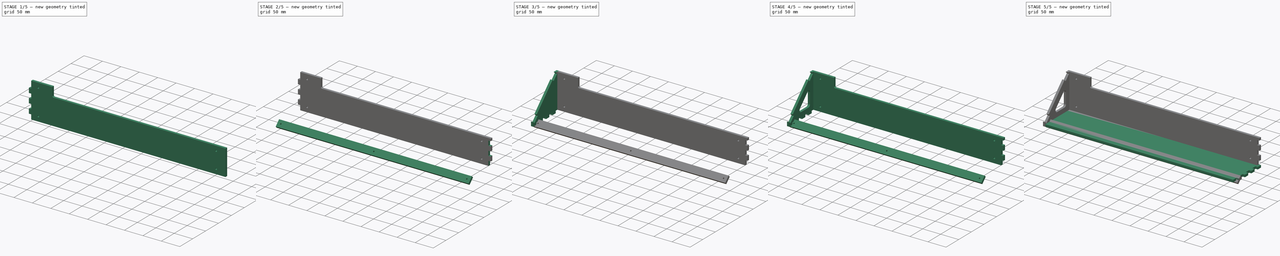
[diagram: build sequence overview — one tinted view per stage of 5, left to right]
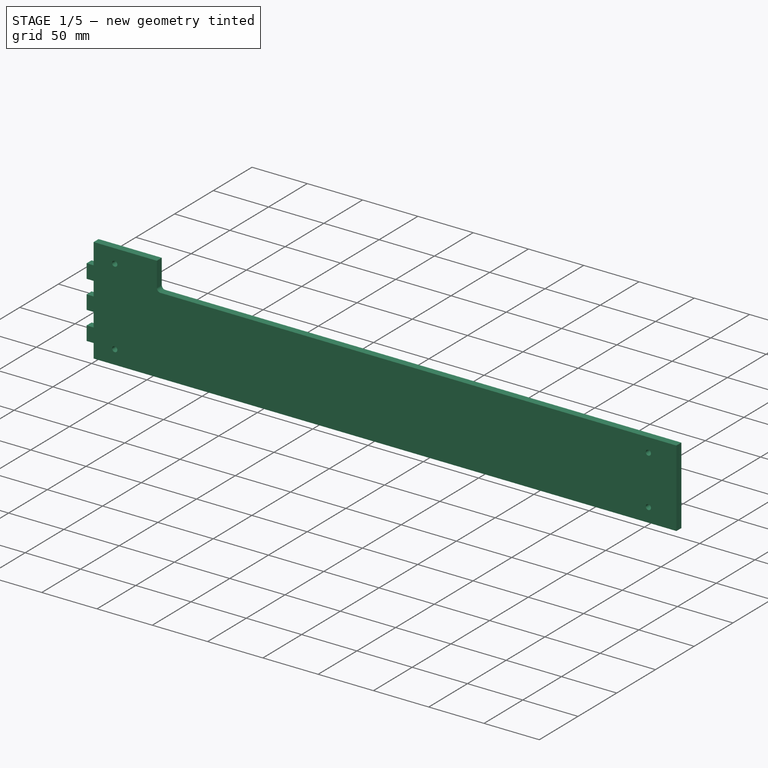
[diagram: stage 1 of 5 — iso view after this stage's code; geometry added in this stage tinted green]
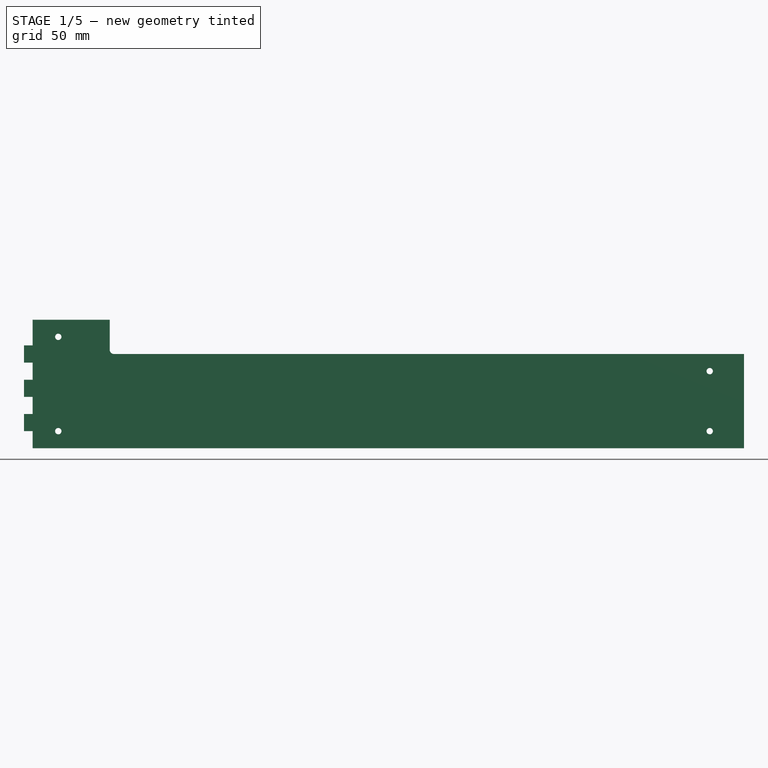
[diagram: stage 1 of 5 — front view after this stage's code; geometry added in this stage tinted green]
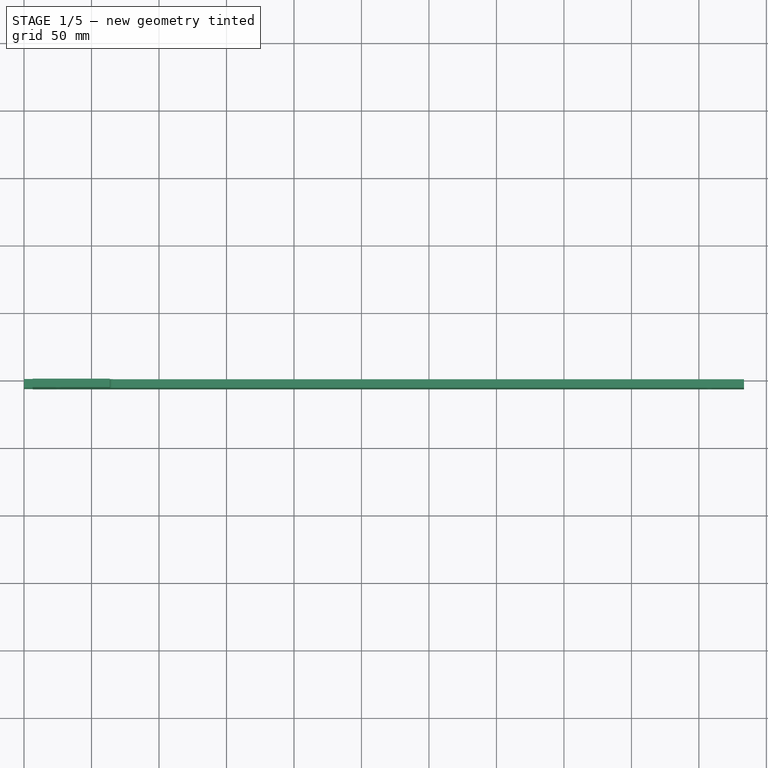
[diagram: stage 1 of 5 — top view after this stage's code; geometry added in this stage tinted green]
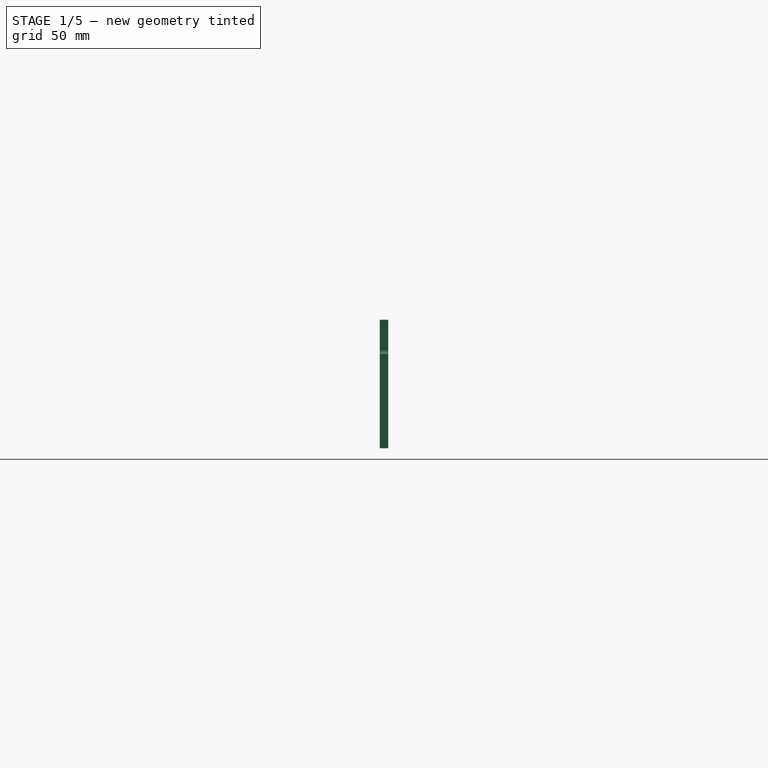
[diagram: stage 1 of 5 — right view after this stage's code; geometry added in this stage tinted green]
FCSTD DOCUMENT  (FreeCAD 1.0R39285 (Git))
Label: panel-support
License: All rights reserved
LicenseURL: http://en.wikipedia.org/wiki/All_rights_reserved
objects: Sketcher::SketchObject×13, TechDraw::DrawProjGroupItem×8, PartDesign::Pocket×6, PartDesign::Pad×5, PartDesign::Body×5, PartDesign::LinearPattern×5, Part::Feature×1, Image::ImagePlane×1, App::Part×1, TechDraw::DrawSVGTemplate×1, TechDraw::DrawPage×1
note: 75 computed .brp shape members not serialized (recipe doc carries the construction recipe); baked Part::Feature solids carry a one-line shape summary decoded from their .brp

FEATURE [Sketcher::SketchObject] Sketch006
  ArcFitTolerance = 1e-06
  FullyConstrained = true
  MakeInternals = false
  MapMode = 5
  Placement = pos=(0,0,0) rot=(1,0,0;1.5708rad)
  sketch-geometry (14):
    g0: LineSegment StartX=533.4 StartY=6.35 StartZ=0 EndX=533.4 EndY=76.2 EndZ=0
    g1: LineSegment StartX=533.4 StartY=76.2 StartZ=0 EndX=66.675 EndY=76.2 EndZ=0
    g2: LineSegment StartX=63.5 StartY=79.375 StartZ=0 EndX=63.5 EndY=101.6 EndZ=0
    g3: LineSegment StartX=63.5 StartY=101.6 StartZ=0 EndX=6.35 EndY=101.6 EndZ=0
    g4: ArcOfCircle CenterX=66.675 CenterY=79.375 CenterZ=0 NormalX=0 NormalY=0 NormalZ=1 AngleXU=0 Radius=3.175 StartAngle=3.14159 EndAngle=4.71239
    g5: GeomPoint [constr] X=63.5 Y=76.2 Z=0
    g6: LineSegment StartX=6.35 StartY=101.6 StartZ=0 EndX=6.35 EndY=82.55 EndZ=0
    g7: LineSegment StartX=6.35 StartY=82.55 StartZ=0 EndX=0 EndY=82.55 EndZ=0
    g8: LineSegment StartX=0 StartY=82.55 StartZ=0 EndX=0 EndY=6.35 EndZ=0
    g9: LineSegment StartX=0 StartY=6.35 StartZ=0 EndX=533.4 EndY=6.35 EndZ=0
    g10: Circle CenterX=508 CenterY=63.5 CenterZ=0 NormalX=0 NormalY=0 NormalZ=1 AngleXU=0 Radius=2.3495
    g11: Circle CenterX=508 CenterY=19.05 CenterZ=0 NormalX=0 NormalY=0 NormalZ=1 AngleXU=0 Radius=2.3495
    g12: Circle CenterX=25.4 CenterY=19.05 CenterZ=0 NormalX=0 NormalY=0 NormalZ=1 AngleXU=0 Radius=2.3495
    g13: Circle CenterX=25.4 CenterY=88.9 CenterZ=0 NormalX=0 NormalY=0 NormalZ=1 AngleXU=0 Radius=2.3495
  constraints (40):
    c: Vertical(g0)
    c: Coincident(g0,g1)
    c: Horizontal(g1)
    c: Coincident(g2,g3)
    c: DistanceX(g-1,g0) = 533.4
    c: Vertical(g2)
    c: DistanceX(g5,g1) = 469.9
    c: PointOnObject(g5,g2)
    c: PointOnObject(g5,g1)
    c: Tangent(g2,g4) = 1.5708
    c: Tangent(g1,g4) = 1.5708
    c: Radius(g4) = 3.175
    c: DistanceY(g1,g2) = 25.4
    c: Vertical(g6)
    c: Coincident(g7,g6)
    c: Horizontal(g7)
    c: DistanceY(g6,g6) = 19.05
    c: DistanceX(g7,g7) = 6.35
    c: Horizontal(g3)
    c: Coincident(g6,g3)
    c: Coincident(g7,g8)
    c: Coincident(g8,g9)
    c: Coincident(g9,g0)
    c: Horizontal(g9)
    c: Vertical(g8)
    c: DistanceY(g-1,g8) = 6.35
    c: DistanceY(g-1,g3) = 101.6
    c: PointOnObject(g8,g-2)
    c: Equal(g11,g10)
    c: Equal(g11,g13)
    c: Equal(g11,g12)
    c: Diameter(g11) = 4.699
    c: Vertical(g10,g11)
    c: Vertical(g13,g12)
    c: Horizontal(g11,g12)
    c: DistanceX(g11,g0) = 25.4
    c: DistanceY(g0,g11) = 12.7
    c: DistanceY(g10,g0) = 12.7
    c: DistanceX(g-1,g12) = 25.4
    c: DistanceY(g13,g3) = 12.7
FEATURE [PartDesign::Pad] Pad006
  Direction = (0,-1,-2e-16)
  Length = 6.35
  Length2 = 10
  Placement = pos=(0,0,0) rot=(1,0,0;1.5708rad)
  Profile = -> Sketch006
  ReferenceAxis = -> Sketch006 [N_Axis]
  Refine = true
  Suppressed = false
  Type = 0
FEATURE [Sketcher::SketchObject] Sketch007
  ArcFitTolerance = 1e-06
  FullyConstrained = true
  MakeInternals = false
  MapMode = 5
  Placement = pos=(0,0,0) rot=(1,0,0;1.5708rad)
  sketch-geometry (4):
    g0: LineSegment StartX=0 StartY=6.35 StartZ=0 EndX=6.35 EndY=6.35 EndZ=0
    g1: LineSegment StartX=6.35 StartY=6.35 StartZ=0 EndX=6.35 EndY=19.05 EndZ=0
    g2: LineSegment StartX=6.35 StartY=19.05 StartZ=0 EndX=0 EndY=19.05 EndZ=0
    g3: LineSegment StartX=0 StartY=19.05 StartZ=0 EndX=0 EndY=6.35 EndZ=0
  constraints (12):
    c: Coincident(g0,g1)
    c: Coincident(g1,g2)
    c: Coincident(g2,g3)
    c: Coincident(g3,g0)
    c: Horizontal(g0)
    c: Horizontal(g2)
    c: Vertical(g1)
    c: Vertical(g3)
    c: PointOnObject(g0,g-2)
    c: DistanceX(g2,g2) = 6.35
    c: DistanceY(g1,g1) = 12.7
    c: DistanceY(g-1,g0) = 6.35
FEATURE [PartDesign::Pocket] Pocket002
  BaseFeature = -> Pad006
  Direction = (0,1,2e-16)
  Length = 5
  Length2 = 5
  Midplane = true
  Placement = pos=(0,0,0) rot=(1,0,0;1.5708rad)
  Profile = -> Sketch007
  ReferenceAxis = -> Sketch007 [N_Axis]
  Refine = true
  Suppressed = false
  Type = 1
FEATURE [PartDesign::LinearPattern] LinearPattern002
  BaseFeature = -> Pocket002
  Direction = -> Z_Axis004
  Length = 50.8
  Mode = 1
  Occurrences = 3
  Offset = 25.4
  Originals = -> [Pocket002]
  Placement = pos=(0,0,0) rot=(1,0,0;1.5708rad)
  Refine = true
  Suppressed = false
  TransformMode = 0
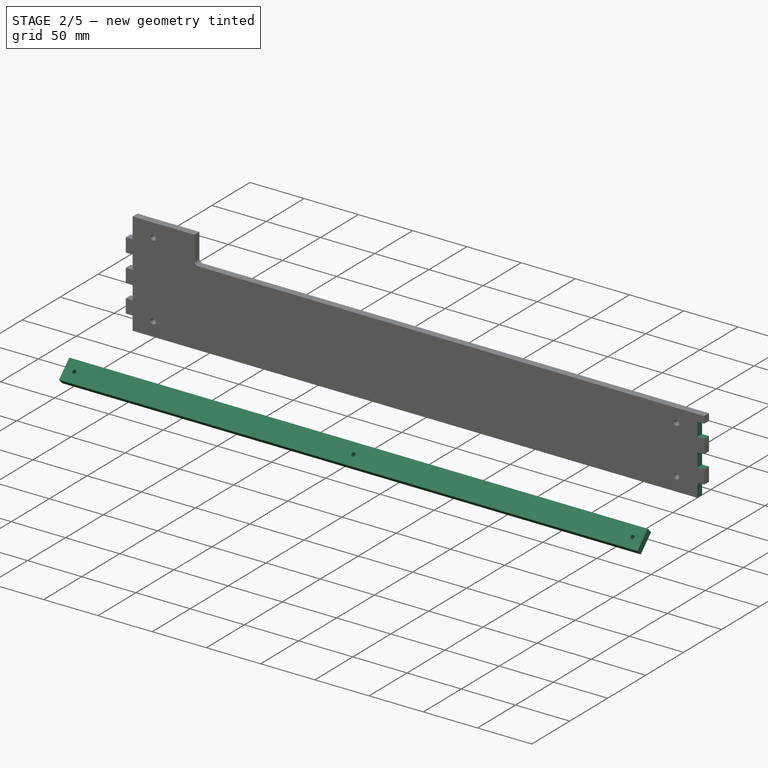
[diagram: stage 2 of 5 — iso view after this stage's code; geometry added in this stage tinted green]
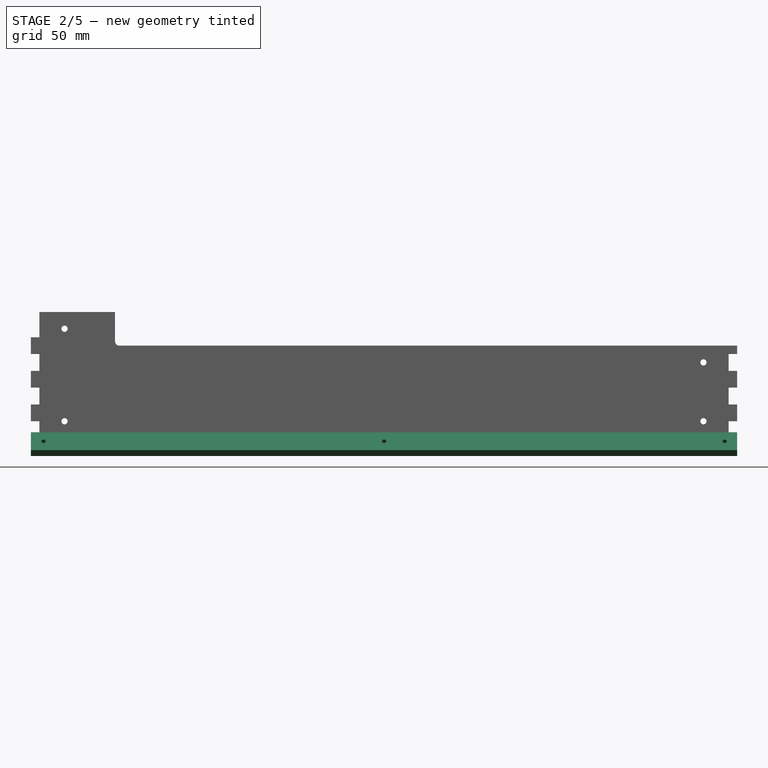
[diagram: stage 2 of 5 — front view after this stage's code; geometry added in this stage tinted green]
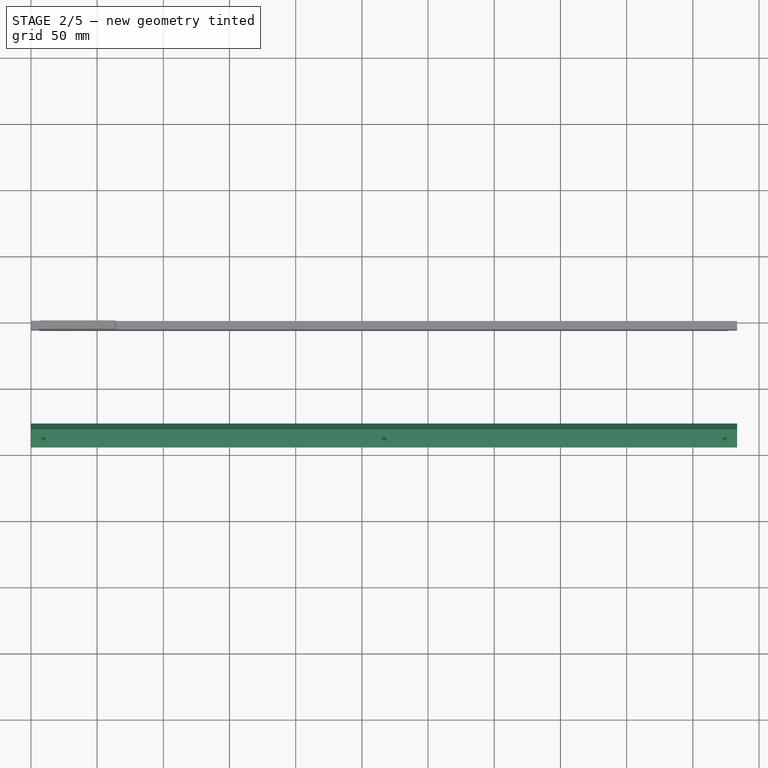
[diagram: stage 2 of 5 — top view after this stage's code; geometry added in this stage tinted green]
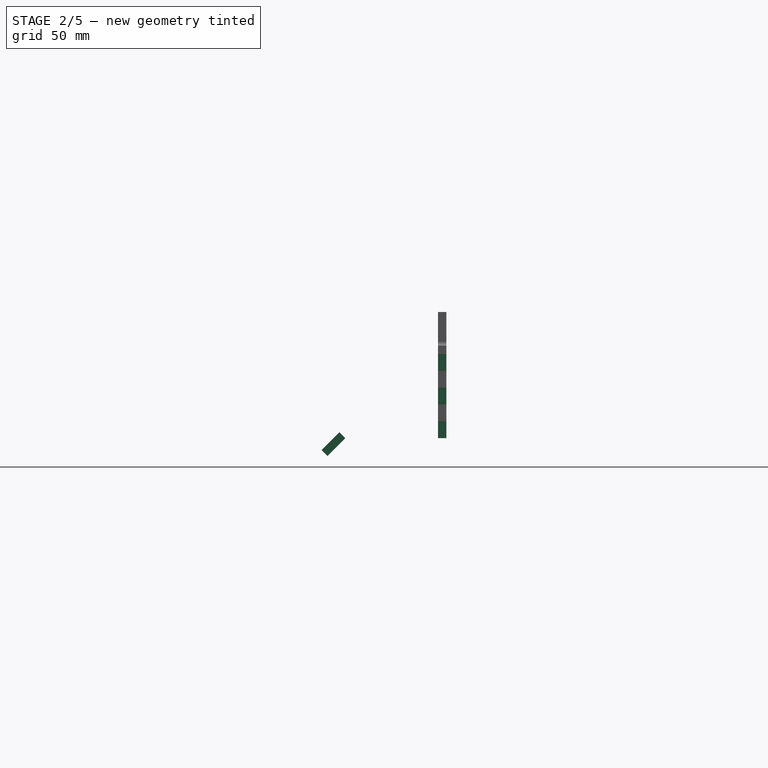
[diagram: stage 2 of 5 — right view after this stage's code; geometry added in this stage tinted green]
FEATURE [Sketcher::SketchObject] Sketch002  label="sface"
  ArcFitTolerance = 1e-06
  AttachmentOffset = pos=(0,0,0) rot=(0,0,1;1.5708rad)
  FullyConstrained = true
  MakeInternals = false
  MapMode = 5
  Placement = pos=(0,-3.175,79.375) rot=(1,0,0;0.785398rad)
  sketch-geometry (18):
    g0: LineSegment StartX=1.137e-13 StartY=4.53526 StartZ=0 EndX=1.137e-13 EndY=-14.5147 EndZ=0
    g1: LineSegment StartX=1.137e-13 StartY=-14.5147 StartZ=0 EndX=533.4 EndY=-14.5147 EndZ=0
    g2: LineSegment StartX=533.4 StartY=-14.5147 StartZ=0 EndX=533.4 EndY=4.53526 EndZ=0
    g3: LineSegment StartX=533.4 StartY=4.53526 StartZ=0 EndX=1.137e-13 EndY=4.53526 EndZ=0
    g4: LineSegment StartX=0 StartY=-122.465 StartZ=0 EndX=533.4 EndY=-122.465 EndZ=0
    g5: LineSegment StartX=533.4 StartY=-122.465 StartZ=0 EndX=533.4 EndY=-103.415 EndZ=0
    g6: LineSegment StartX=533.4 StartY=-103.415 StartZ=0 EndX=0 EndY=-103.415 EndZ=0
    g7: LineSegment StartX=0 StartY=-103.415 StartZ=0 EndX=0 EndY=-122.465 EndZ=0
    g8: LineSegment [constr] StartX=9.398 StartY=-4.86274 StartZ=0 EndX=266.7 EndY=-4.86274 EndZ=0
    g9: LineSegment [constr] StartX=266.7 StartY=-4.86274 StartZ=0 EndX=524.002 EndY=-4.86274 EndZ=0
    g10: LineSegment [constr] StartX=9.398 StartY=-113.067 StartZ=0 EndX=266.7 EndY=-113.067 EndZ=0
    g11: LineSegment [constr] StartX=266.7 StartY=-113.067 StartZ=0 EndX=524.002 EndY=-113.067 EndZ=0
    g12: Circle CenterX=9.398 CenterY=-4.86274 CenterZ=0 NormalX=0 NormalY=0 NormalZ=1 AngleXU=0 Radius=1.778
    g13: Circle CenterX=266.7 CenterY=-4.86274 CenterZ=0 NormalX=0 NormalY=0 NormalZ=1 AngleXU=0 Radius=1.778
    g14: Circle CenterX=524.002 CenterY=-4.86274 CenterZ=0 NormalX=0 NormalY=0 NormalZ=1 AngleXU=0 Radius=1.778
    g15: Circle CenterX=9.398 CenterY=-113.067 CenterZ=0 NormalX=0 NormalY=0 NormalZ=1 AngleXU=0 Radius=1.778
    g16: Circle CenterX=266.7 CenterY=-113.067 CenterZ=0 NormalX=0 NormalY=0 NormalZ=1 AngleXU=0 Radius=1.778
    g17: Circle CenterX=524.002 CenterY=-113.067 CenterZ=0 NormalX=0 NormalY=0 NormalZ=1 AngleXU=0 Radius=1.778
  constraints (47):
    c: Coincident(g0,g1)
    c: Coincident(g1,g2)
    c: Coincident(g2,g3)
    c: Coincident(g3,g0)
    c: Vertical(g0)
    c: Vertical(g2)
    c: Horizontal(g1)
    c: Horizontal(g3)
    c: Coincident(g0,g-5)
    c: DistanceX(g3,g3) = 533.4
    c: DistanceY(g0,g0) = 19.05
    c: Coincident(g4,g5)
    c: Coincident(g5,g6)
    c: Coincident(g6,g7)
    c: Coincident(g7,g4)
    c: Horizontal(g6)
    c: Vertical(g5)
    c: Vertical(g7)
    c: Coincident(g4,g-4)
    c: Coincident(g-3,g4)
    c: Equal(g5,g2)
    c: Horizontal(g8)
    c: Coincident(g8,g9)
    c: Horizontal(g9)
    c: Coincident(g10,g11)
    c: Horizontal(g10)
    c: Horizontal(g11)
    c: Coincident(g17,g11)
    c: Coincident(g16,g10)
    c: Coincident(g15,g10)
    c: Coincident(g9,g14)
    c: Coincident(g8,g13)
    c: Coincident(g12,g8)
    c: DistanceY(g8,g0) = 9.398
    c: DistanceX(g0,g8) = 9.398
    c: Equal(g12,g13)
    c: Equal(g13,g14)
    c: Equal(g14,g15)
    c: Equal(g15,g16)
    c: Equal(g16,g17)
    c: DistanceY(g4,g10) = 9.398
    c: Vertical(g10,g8)
    c: Vertical(g9,g11)
    c: Vertical(g10,g8)
    c: DistanceX(g9,g2) = 9.398
    c: Diameter(g15) = 3.556
    c: Equal(g11,g10)
FEATURE [Sketcher::SketchObject] MirroredSketch001  label="s-endcap"
  ArcFitTolerance = 1e-06
  FullyConstrained = true
  MakeInternals = false
  Placement = pos=(0,0,0) rot=(0.57735,0.57735,0.57735;2.0944rad)
  sketch-geometry (15):
    g0: LineSegment [constr] StartX=-101.6 StartY=11.7974 StartZ=0 EndX=-88.1296 EndY=25.2678 EndZ=0
    g1: LineSegment StartX=-88.1296 StartY=25.2678 StartZ=0 EndX=-25.2678 EndY=88.1296 EndZ=0
    g2: LineSegment [constr] StartX=-25.2678 StartY=88.1296 StartZ=0 EndX=-11.7974 EndY=101.6 EndZ=0
    g3: LineSegment StartX=-88.1296 StartY=25.2678 StartZ=0 EndX=-83.6395 EndY=20.7777 EndZ=0
    g4: LineSegment StartX=-83.6395 StartY=20.7777 StartZ=0 EndX=-97.1099 EndY=7.30731 EndZ=0
    g5: LineSegment StartX=-25.2678 StartY=88.1296 StartZ=0 EndX=-20.7777 EndY=83.6395 EndZ=0
    g6: LineSegment StartX=-20.7777 StartY=83.6395 StartZ=0 EndX=-7.30731 EndY=97.1099 EndZ=0
    g7: LineSegment StartX=-7.30731 StartY=97.1099 StartZ=0 EndX=-11.7974 EndY=101.6 EndZ=0
    g8: LineSegment StartX=0 StartY=101.6 StartZ=0 EndX=0 EndY=0 EndZ=0
    g9: LineSegment StartX=0 StartY=0 StartZ=0 EndX=-101.6 EndY=0 EndZ=0
    g10: LineSegment StartX=-101.6 StartY=11.7974 StartZ=0 EndX=-97.1099 EndY=7.30731 EndZ=0
    g11: LineSegment [constr] StartX=-103.719 StartY=13.9168 StartZ=0 EndX=-13.9168 EndY=103.719 EndZ=0
    g12: LineSegment [constr] StartX=0 StartY=6.35 StartZ=0 EndX=-101.6 EndY=6.35 EndZ=0
    g13: LineSegment StartX=-11.7974 StartY=101.6 StartZ=0 EndX=0 EndY=101.6 EndZ=0
    g14: LineSegment StartX=-101.6 StartY=11.7974 StartZ=0 EndX=-101.6 EndY=0 EndZ=0
  constraints (46):
    c: Coincident(g1,g0)
    c: Coincident(g2,g1)
    c: Coincident(g3,g0)
    c: Coincident(g4,g3)
    c: Coincident(g5,g1)
    c: Coincident(g6,g5)
    c: PointOnObject(g2,g1)
    c: PointOnObject(g0,g1)
    c: Perpendicular(g3,g0)
    c: Perpendicular(g1,g5)
    c: Equal(g0,g2)
    c: Equal(g5,g3)
    c: Perpendicular(g5,g6)
    c: Perpendicular(g3,g4)
    c: Distance(g2) = 19.05
    c: Equal(g0,g4)
    c: Equal(g2,g6)
    c: Distance(g3) = 6.35
    c: Distance(g0,g2) = 127
    c: Angle(g-1,g1) = 0.785398
    c: Coincident(g6,g7)
    c: Coincident(g7,g2)
    c: Vertical(g8)
    c: Coincident(g8,g9)
    c: PointOnObject(g9,g-1)
    c: Horizontal(g9)
    c: Coincident(g0,g10)
    c: Coincident(g10,g4)
    c: PointOnObject(g8,g-2)
    c: DistanceY(g8,g8) = 101.6
    c: Parallel(g11,g1)
    c: Distance(g11,g1) = 2.9972
    c: PointOnObject(g11,g10)
    c: PointOnObject(g11,g7)
    c: DistanceX(g9,g9) = 101.6
    c: Horizontal(g12)
    c: PointOnObject(g12,g8)
    c: DistanceY(g8,g12) = 6.35
    c: Coincident(g13,g2)
    c: Coincident(g13,g8)
    c: Horizontal(g13)
    c: Coincident(g14,g0)
    c: Coincident(g14,g9)
    c: Vertical(g14)
    c: PointOnObject(g12,g14)
    c: DistanceX(g4,g12) = 97.1099
FEATURE [PartDesign::Pad] Pad004
  Direction = (0,-0.71,0.71)
  Length = 6.35
  Length2 = 10
  Placement = pos=(0,-3.175,79.375) rot=(1,0,0;0.785398rad)
  Profile = -> Sketch002
  ReferenceAxis = -> Sketch002 [N_Axis]
  Refine = true
  Suppressed = false
  Type = 0
FEATURE [Sketcher::SketchObject] Sketch008
  ArcFitTolerance = 1e-06
  AttachmentSupport = -> [Origin009]
  FullyConstrained = true
  MakeInternals = false
  MapMode = 5
  Placement = pos=(0,0,0) rot=(1,0,0;1.5708rad)
FEATURE [Sketcher::SketchObject] Sketch009
  ArcFitTolerance = 1e-06
  AttachmentSupport = -> [XZ_Plane004]
  FullyConstrained = true
  MakeInternals = false
  MapMode = 5
  Placement = pos=(0,0,0) rot=(1,0,0;1.5708rad)
  sketch-geometry (4):
    g0: LineSegment StartX=533.4 StartY=6.35 StartZ=0 EndX=533.4 EndY=19.05 EndZ=0
    g1: LineSegment StartX=533.4 StartY=19.05 StartZ=0 EndX=527.05 EndY=19.05 EndZ=0
    g2: LineSegment StartX=527.05 StartY=19.05 StartZ=0 EndX=527.05 EndY=6.35 EndZ=0
    g3: LineSegment StartX=527.05 StartY=6.35 StartZ=0 EndX=533.4 EndY=6.35 EndZ=0
  constraints (12):
    c: Coincident(g0,g1)
    c: Coincident(g1,g2)
    c: Coincident(g2,g3)
    c: Coincident(g3,g0)
    c: Vertical(g0)
    c: Vertical(g2)
    c: Horizontal(g1)
    c: Horizontal(g3)
    c: DistanceX(g1,g1) = 6.35
    c: DistanceY(g0,g0) = 12.7
    c: DistanceX(g-1,g0) = 533.4
    c: DistanceY(g-1,g0) = 6.35
FEATURE [PartDesign::Pocket] Pocket003
  BaseFeature = -> LinearPattern002
  Direction = (0,1,-2e-16)
  Length = 5
  Length2 = 5
  Midplane = true
  Placement = pos=(0,0,0) rot=(1,0,0;1.5708rad)
  Profile = -> Sketch009
  ReferenceAxis = -> Sketch009 [N_Axis]
  Refine = true
  Suppressed = false
  Type = 1
FEATURE [PartDesign::LinearPattern] LinearPattern003
  BaseFeature = -> Pocket003
  Direction = -> Z_Axis004
  Length = 50.8
  Mode = 1
  Occurrences = 3
  Offset = 25.4
  Originals = -> [Pocket003]
  Placement = pos=(0,0,0) rot=(1,0,0;1.5708rad)
  Refine = true
  Suppressed = false
  TransformMode = 0
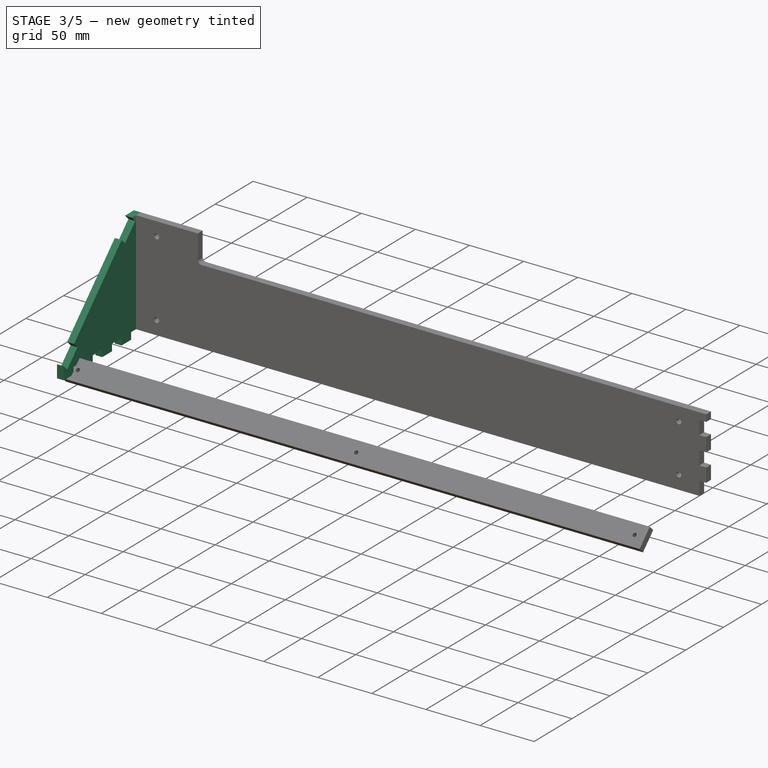
[diagram: stage 3 of 5 — iso view after this stage's code; geometry added in this stage tinted green]
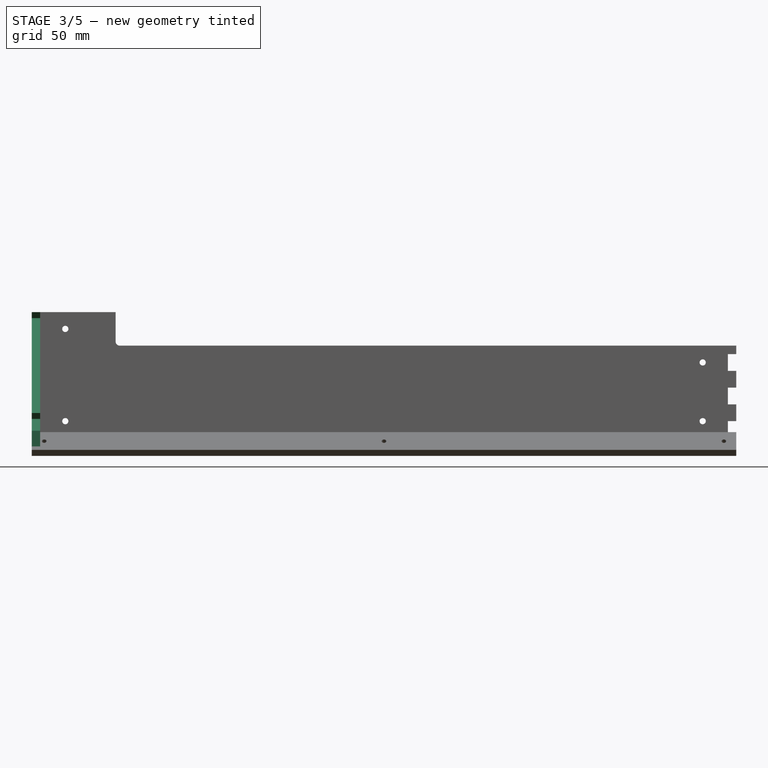
[diagram: stage 3 of 5 — front view after this stage's code; geometry added in this stage tinted green]
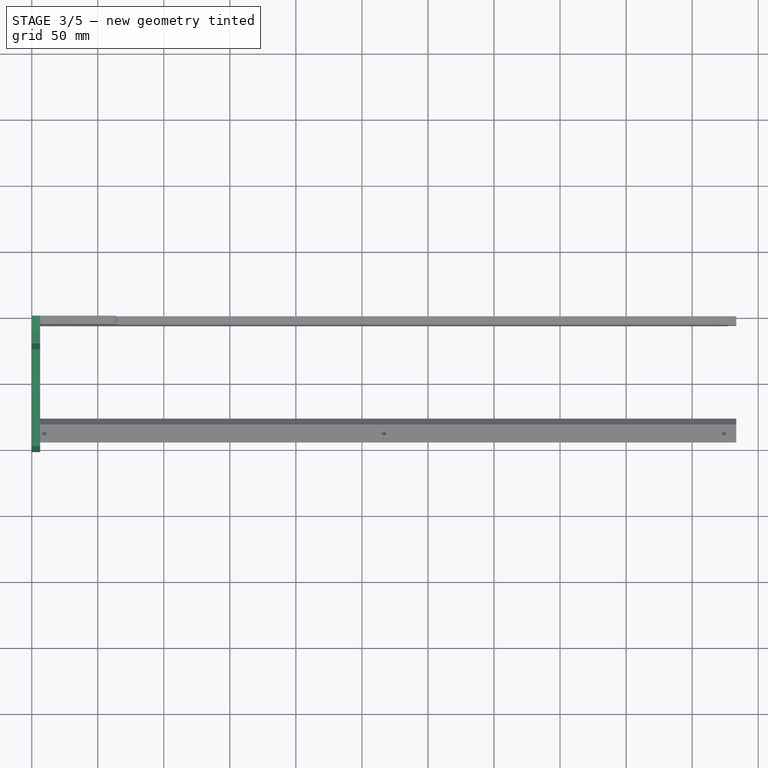
[diagram: stage 3 of 5 — top view after this stage's code; geometry added in this stage tinted green]
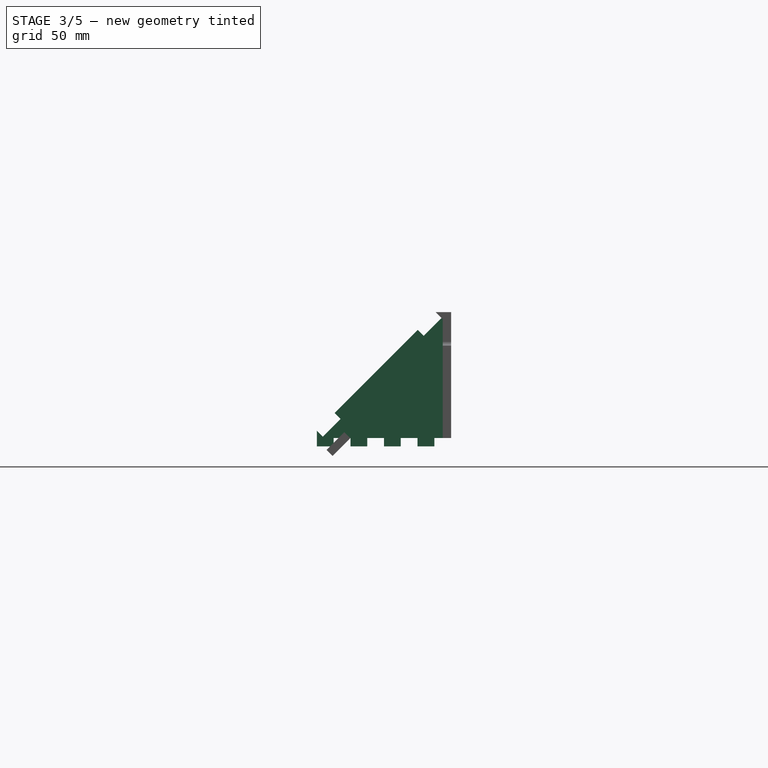
[diagram: stage 3 of 5 — right view after this stage's code; geometry added in this stage tinted green]
FEATURE [PartDesign::Body] Body001  label="face"
  AllowCompound = false
  Group = -> [Sketch002,Pad004]
  Origin = -> Origin002
  Placement = pos=(0,0,0) rot=(1,0,0;5.49779rad)
  Tip = -> Pad004
FEATURE [Part::Feature] Body005  label="face001"
  Placement = pos=(0,69.0254,90.8118) rot=(0,0,1;0rad)
  shape: bbox 533.4 x 17.96 x 17.96 mm, 9 faces (baked)
FEATURE [PartDesign::Pad] Pad005
  Direction = (1,1e-16,-1e-16)
  Length = 6.35
  Length2 = 10
  Placement = pos=(0,0,0) rot=(0.57735,0.57735,0.57735;2.0944rad)
  Profile = -> MirroredSketch001
  ReferenceAxis = -> MirroredSketch001 [N_Axis]
  Refine = true
  Suppressed = false
  Type = 0
FEATURE [Sketcher::SketchObject] Sketch004
  ArcFitTolerance = 1e-06
  AttachmentSupport = -> [Origin007]
  FullyConstrained = true
  MakeInternals = false
  MapMode = 5
  Placement = pos=(0,0,0) rot=(0.57735,0.57735,0.57735;2.0944rad)
  sketch-geometry (4):
    g0: LineSegment StartX=-12.7 StartY=6.35 StartZ=0 EndX=-12.7 EndY=0 EndZ=0
    g1: LineSegment StartX=-12.7 StartY=0 StartZ=0 EndX=0 EndY=0 EndZ=0
    g2: LineSegment StartX=0 StartY=0 StartZ=0 EndX=0 EndY=6.35 EndZ=0
    g3: LineSegment StartX=0 StartY=6.35 StartZ=0 EndX=-12.7 EndY=6.35 EndZ=0
  constraints (12):
    c: Coincident(g0,g1)
    c: Coincident(g1,g2)
    c: Coincident(g2,g3)
    c: Coincident(g3,g0)
    c: Vertical(g0)
    c: Vertical(g2)
    c: Horizontal(g1)
    c: Horizontal(g3)
    c: DistanceY(g2,g2) = 6.35
    c: DistanceX(g1,g1) = 12.7
    c: PointOnObject(g0,g-1)
    c: PointOnObject(g2,g-2)
FEATURE [Sketcher::SketchObject] Sketch005
  ArcFitTolerance = 1e-06
  AttachmentSupport = -> [Origin007]
  FullyConstrained = true
  MakeInternals = false
  MapMode = 5
  Placement = pos=(0,0,0) rot=(0.57735,0.57735,0.57735;2.0944rad)
  sketch-geometry (4):
    g0: LineSegment StartX=-6.35 StartY=31.75 StartZ=0 EndX=-6.35 EndY=19.05 EndZ=0
    g1: LineSegment StartX=-6.35 StartY=19.05 StartZ=0 EndX=0 EndY=19.05 EndZ=0
    g2: LineSegment StartX=0 StartY=19.05 StartZ=0 EndX=0 EndY=31.75 EndZ=0
    g3: LineSegment StartX=0 StartY=31.75 StartZ=0 EndX=-6.35 EndY=31.75 EndZ=0
  constraints (12):
    c: Coincident(g0,g1)
    c: Coincident(g1,g2)
    c: Coincident(g2,g3)
    c: Coincident(g3,g0)
    c: Vertical(g0)
    c: Vertical(g2)
    c: Horizontal(g1)
    c: Horizontal(g3)
    c: DistanceX(g1,g1) = 6.35
    c: DistanceY(g0,g0) = 12.7
    c: DistanceY(g-1,g0) = 19.05
    c: PointOnObject(g1,g-2)
FEATURE [PartDesign::Pocket] Pocket
  BaseFeature = -> Pad005
  Direction = (-1,-1e-16,1e-16)
  Length = 5
  Length2 = 5
  Midplane = true
  Placement = pos=(0,0,0) rot=(0.57735,0.57735,0.57735;2.0944rad)
  Profile = -> Sketch004
  ReferenceAxis = -> Sketch004 [N_Axis]
  Refine = true
  Suppressed = false
  Type = 1
FEATURE [PartDesign::LinearPattern] LinearPattern
  BaseFeature = -> Pocket
  Direction = -> Sketch004 [H_Axis]
  Length = 152.4
  Mode = 1
  Occurrences = 7
  Offset = 25.4
  Originals = -> [Pocket]
  Placement = pos=(0,0,0) rot=(0.57735,0.57735,0.57735;2.0944rad)
  Refine = true
  Reversed = true
  Suppressed = false
  TransformMode = 0
FEATURE [PartDesign::Body] Body002  label="endcap"
  AllowCompound = false
  Group = -> [MirroredSketch001,Pad005,Sketch004,Sketch005,Pocket,LinearPattern,Pocket001,LinearPattern001,Sketch012,Pocket005]
  Origin = -> Origin007
  Tip = -> Pocket005
FEATURE [Sketcher::SketchObject] Sketch013
  ArcFitTolerance = 1e-06
  AttachmentSupport = -> [YZ_Plane005]
  FullyConstrained = false
  MakeInternals = false
  MapMode = 5
  Placement = pos=(0,0,0) rot=(0.57735,0.57735,0.57735;2.0944rad)
  sketch-geometry (12):
    g0: LineSegment StartX=-6.35 StartY=97.1042 StartZ=0 EndX=-6.35 EndY=6.35 EndZ=0
    g1: LineSegment StartX=-6.35 StartY=6.35 StartZ=0 EndX=-97.1042 EndY=6.35 EndZ=0
    g2: LineSegment StartX=-97.1042 StartY=6.35 StartZ=0 EndX=-6.35 EndY=97.1042 EndZ=0
    g3: LineSegment StartX=-19.05 StartY=54.5537 StartZ=0 EndX=-19.05 EndY=25.4 EndZ=0
    g4: LineSegment StartX=-25.4 StartY=19.05 StartZ=0 EndX=-54.5537 EndY=19.05 EndZ=0
    g5: LineSegment StartX=-59.0438 StartY=29.8901 StartZ=0 EndX=-29.8901 EndY=59.0438 EndZ=0
    g6: ArcOfCircle CenterX=-25.4 CenterY=54.5537 CenterZ=0 NormalX=0 NormalY=0 NormalZ=1 AngleXU=0 Radius=6.35 StartAngle=0 EndAngle=2.35619
    g7: GeomPoint [constr] X=-19.05 Y=69.884 Z=0
    g8: ArcOfCircle CenterX=-54.5537 CenterY=25.4 CenterZ=0 NormalX=0 NormalY=0 NormalZ=1 AngleXU=0 Radius=6.35 StartAngle=2.35619 EndAngle=4.71239
    g9: GeomPoint [constr] X=-69.884 Y=19.05 Z=0
    g10: ArcOfCircle CenterX=-25.4 CenterY=25.4 CenterZ=0 NormalX=0 NormalY=0 NormalZ=1 AngleXU=0 Radius=6.35 StartAngle=4.71239 EndAngle=6.28319
    g11: GeomPoint [constr] X=-19.05 Y=19.05 Z=0
  constraints (29):
    c: Vertical(g0)
    c: Coincident(g0,g1)
    c: Horizontal(g1)
    c: Coincident(g1,g2)
    c: Coincident(g2,g0)
    c: DistanceY(g-1,g0) = 6.35
    c: DistanceX(g0,g-1) = 6.35
    c: Angle(g1,g2) = 0.785398
    c: Horizontal(g4)
    c: Vertical(g3)
    c: PointOnObject(g7,g3)
    c: PointOnObject(g7,g5)
    c: Tangent(g3,g6) = 1.5708
    c: Tangent(g5,g6) = 1.5708
    c: PointOnObject(g9,g5)
    c: PointOnObject(g9,g4)
    c: Tangent(g5,g8) = 1.5708
    c: Tangent(g4,g8) = 1.5708
    c: PointOnObject(g11,g4)
    c: PointOnObject(g11,g3)
    c: Tangent(g4,g10) = 1.5708
    c: Tangent(g3,g10) = 1.5708
    c: Equal(g6,g10)
    c: Equal(g10,g8)
    c: Radius(g6) = 6.35
    c: DistanceX(g3,g0) = 12.7
    c: DistanceY(g0,g4) = 12.7
    c: Parallel(g2,g5)
    c: DistanceX(g1,g-1) = 97.1042
FEATURE [PartDesign::Pad] Pad007
  Direction = (1,0,0)
  Length = 6.35
  Length2 = 10
  Placement = pos=(0,0,0) rot=(1,1,1;2.0944rad)
  Profile = -> Sketch013
  ReferenceAxis = -> Sketch013 [N_Axis]
  Refine = true
  Suppressed = false
  Type = 0
FEATURE [PartDesign::Body] Body004  label="rib"
  AllowCompound = false
  Group = -> [Sketch013,Pad007]
  Origin = -> Origin011
  Placement = pos=(177.8,0,0) rot=(0,0,1;0rad)
  Tip = -> Pad007
FEATURE [App::Part] Part
  Group = -> [Body001,Body,Body002,Body003,Body004,Body005]
  Origin = -> Origin
FEATURE [TechDraw::DrawProjGroupItem] View  label="camfloor"
  CoarseView = false
  Direction = (0,0,-1)
  Focus = 100
  HardHidden = false
  IsoCount = 0
  IsoHidden = false
  IsoVisible = false
  LockPosition = false
  Perspective = false
  Rotation = 0
  RotationVector = (1,0,0)
  ScaleType = 0
  ScrubCount = 1
  SeamHidden = false
  SeamVisible = false
  SmoothHidden = false
  SmoothVisible = true
  Source = -> [Body]
  Type = 0
  X = 284.051
  XDirection = (1,0,0)
  Y = 295.796
FEATURE [TechDraw::DrawProjGroupItem] View002  label="cam-end1"
  CoarseView = false
  Direction = (-1,-1e-16,0)
  Focus = 100
  HardHidden = false
  IsoCount = 0
  IsoHidden = false
  IsoVisible = false
  LockPosition = false
  Perspective = false
  Rotation = 0
  RotationVector = (1,0,0)
  ScaleType = 0
  ScrubCount = 1
  SeamHidden = false
  SeamVisible = false
  SmoothHidden = false
  SmoothVisible = true
  Source = -> [Body002]
  Type = 0
  X = 602.711
  XDirection = (1e-16,-1,0)
  Y = 379.79
FEATURE [TechDraw::DrawProjGroupItem] View003  label="cam-end2"
  CoarseView = false
  Direction = (-1,-1e-16,0)
  Focus = 100
  HardHidden = false
  IsoCount = 0
  IsoHidden = false
  IsoVisible = false
  LockPosition = false
  Perspective = false
  Rotation = 0
  RotationVector = (1,0,0)
  ScaleType = 0
  ScrubCount = 1
  SeamHidden = false
  SeamVisible = false
  SmoothHidden = false
  SmoothVisible = true
  Source = -> [LinearPattern001]
  Type = 0
  X = 602.711
  XDirection = (1e-16,-1,0)
  Y = 266.37
FEATURE [TechDraw::DrawProjGroupItem] View004  label="cam-rib1"
  CoarseView = false
  Direction = (-1,-1e-16,0)
  Focus = 100
  HardHidden = false
  IsoCount = 0
  IsoHidden = false
  IsoVisible = false
  LockPosition = false
  Perspective = false
  Rotation = 180
  RotationVector = (1,0,0)
  ScaleType = 0
  ScrubCount = 1
  SeamHidden = false
  SeamVisible = false
  SmoothHidden = false
  SmoothVisible = true
  Source = -> [Body004]
  Type = 0
  X = 615.417
  XDirection = (1e-16,-1,0)
  Y = 266.439
FEATURE [TechDraw::DrawProjGroupItem] View005  label="cam-rb2"
  CoarseView = false
  Direction = (-1,-1e-16,0)
  Focus = 100
  HardHidden = false
  IsoCount = 0
  IsoHidden = false
  IsoVisible = false
  LockPosition = false
  Perspective = false
  Rotation = 180
  RotationVector = (1,0,0)
  ScaleType = 0
  ScrubCount = 1
  SeamHidden = false
  SeamVisible = false
  SmoothHidden = false
  SmoothVisible = true
  Source = -> [Body004]
  Type = 0
  X = 615.417
  XDirection = (1e-16,-1,0)
  Y = 379.79
FEATURE [TechDraw::DrawProjGroupItem] View006  label="camface1"
  CoarseView = false
  Direction = (0,0,-1)
  Focus = 100
  HardHidden = false
  IsoCount = 0
  IsoHidden = false
  IsoVisible = false
  LockPosition = false
  Perspective = false
  Rotation = 0
  RotationVector = (1,0,0)
  ScaleType = 0
  ScrubCount = 1
  SeamHidden = false
  SeamVisible = false
  SmoothHidden = false
  SmoothVisible = true
  Source = -> [Pad004]
  Type = 0
  X = 355.503
  XDirection = (1,0,0)
  Y = 443.493
FEATURE [TechDraw::DrawProjGroupItem] View007  label="camface2"
  CoarseView = false
  Direction = (0,0,-1)
  Focus = 100
  HardHidden = false
  IsoCount = 0
  IsoHidden = false
  IsoVisible = false
  LockPosition = false
  Perspective = false
  Rotation = 0
  RotationVector = (1,0,0)
  ScaleType = 0
  ScrubCount = 1
  SeamHidden = false
  SeamVisible = false
  SmoothHidden = false
  SmoothVisible = true
  Source = -> [Body001]
  Type = 0
  X = 284.051
  XDirection = (1,0,0)
  Y = 219.689
FEATURE [TechDraw::DrawSVGTemplate] Template001
  Height = 460
  Orientation = 1
  Template = <userpath>/FreeCAD/templates/nejemax4_750x460.svg
  Width = 750
FEATURE [TechDraw::DrawProjGroupItem] View008
  CoarseView = false
  Direction = (0,-1,0)
  Focus = 100
  HardHidden = false
  IsoCount = 0
  IsoHidden = false
  IsoVisible = false
  LockPosition = false
  Perspective = false
  Rotation = 0
  RotationVector = (1,0,0)
  ScaleType = 0
  ScrubCount = 1
  SeamHidden = false
  SeamVisible = false
  SmoothHidden = false
  SmoothVisible = true
  Source = -> [Body003]
  Type = 0
  X = 284.051
  XDirection = (1,0,0)
  Y = 401.407
FEATURE [TechDraw::DrawPage] Page001
  KeepUpdated = true
  NextBalloonIndex = 1
  ProjectionType = 0
  Template = -> Template001
  Views = -> [View,View002,View003,View004,View005,View006,View007,View008]
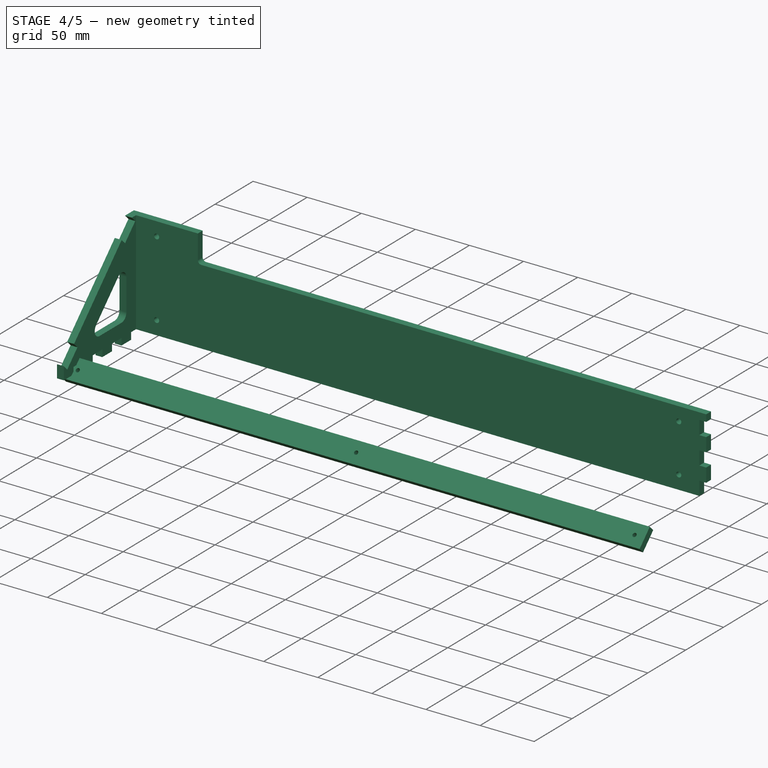
[diagram: stage 4 of 5 — iso view after this stage's code; geometry added in this stage tinted green]
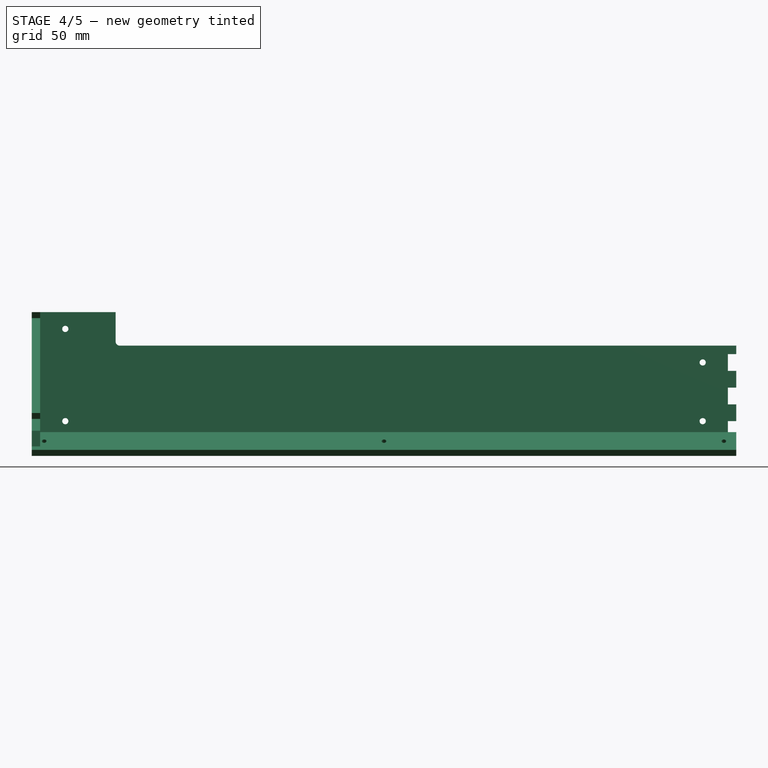
[diagram: stage 4 of 5 — front view after this stage's code; geometry added in this stage tinted green]
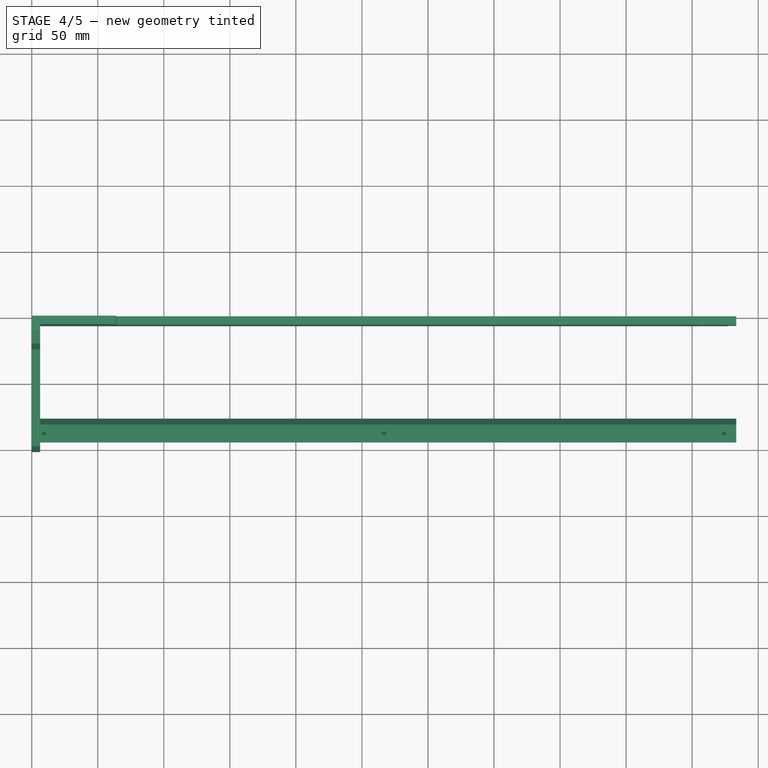
[diagram: stage 4 of 5 — top view after this stage's code; geometry added in this stage tinted green]
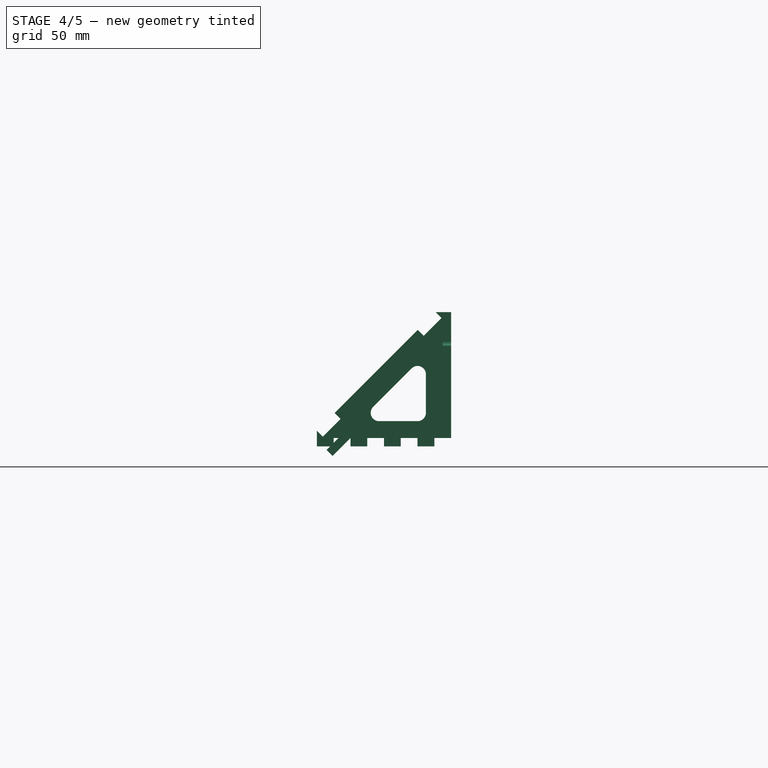
[diagram: stage 4 of 5 — right view after this stage's code; geometry added in this stage tinted green]
FEATURE [PartDesign::Pocket] Pocket001
  BaseFeature = -> LinearPattern
  Direction = (-1,-1e-16,1e-16)
  Length = 5
  Length2 = 5
  Midplane = true
  Placement = pos=(0,0,0) rot=(0.57735,0.57735,0.57735;2.0944rad)
  Profile = -> Sketch005
  ReferenceAxis = -> Sketch005 [N_Axis]
  Refine = true
  Suppressed = false
  Type = 1
FEATURE [PartDesign::LinearPattern] LinearPattern001
  BaseFeature = -> Pocket001
  Direction = -> Z_Axis003
  Length = 50.8
  Mode = 1
  Occurrences = 3
  Offset = 25.4
  Originals = -> [Pocket001]
  Placement = pos=(0,0,0) rot=(0.57735,0.57735,0.57735;2.0944rad)
  Refine = true
  Suppressed = false
  TransformMode = 0
FEATURE [Sketcher::SketchObject] Sketch011
  ArcFitTolerance = 1e-06
  AttachmentSupport = -> [XY_Plane002]
  FullyConstrained = true
  MakeInternals = false
  MapMode = 5
FEATURE [PartDesign::Body] Body  label="floor"
  AllowCompound = false
  Group = -> [Sketch,Pad,Sketch010,Pocket004,LinearPattern005,Sketch011]
  Origin = -> Origin005
  Tip = -> LinearPattern005
FEATURE [Image::ImagePlane] panel
  Placement = pos=(0,-56.5756,57.9765) rot=(1,0,0;0.785398rad)
  XSize = 1066.8
  YSize = 127
FEATURE [Sketcher::SketchObject] Sketch012
  ArcFitTolerance = 1e-06
  AttachmentSupport = -> [YZ_Plane003]
  FullyConstrained = true
  MakeInternals = false
  MapMode = 5
  Placement = pos=(0,0,0) rot=(0.57735,0.57735,0.57735;2.0944rad)
  sketch-geometry (9):
    g0: LineSegment StartX=-19.05 StartY=54.5197 StartZ=0 EndX=-19.05 EndY=25.4 EndZ=0
    g1: LineSegment StartX=-25.4 StartY=19.05 StartZ=0 EndX=-54.5197 EndY=19.05 EndZ=0
    g2: LineSegment StartX=-59.0099 StartY=29.8901 StartZ=0 EndX=-29.8901 EndY=59.0099 EndZ=0
    g3: ArcOfCircle CenterX=-25.4 CenterY=54.5197 CenterZ=0 NormalX=0 NormalY=0 NormalZ=1 AngleXU=0 Radius=6.35 StartAngle=2.0608e-12 EndAngle=2.35619
    g4: GeomPoint [constr] X=-19.05 Y=69.85 Z=0
    g5: ArcOfCircle CenterX=-54.5197 CenterY=25.4 CenterZ=0 NormalX=0 NormalY=0 NormalZ=1 AngleXU=0 Radius=6.35 StartAngle=2.35619 EndAngle=4.71239
    g6: GeomPoint [constr] X=-69.85 Y=19.05 Z=0
    g7: ArcOfCircle CenterX=-25.4 CenterY=25.4 CenterZ=0 NormalX=0 NormalY=0 NormalZ=1 AngleXU=0 Radius=6.35 StartAngle=4.71239 EndAngle=6.28319
    g8: GeomPoint [constr] X=-19.05 Y=19.05 Z=0
  constraints (21):
    c: Vertical(g0)
    c: Horizontal(g1)
    c: DistanceY(g-1,g8) = 19.05
    c: DistanceX(g8,g-1) = 19.05
    c: DistanceY(g-1,g4) = 69.85
    c: DistanceX(g6,g-1) = 69.85
    c: PointOnObject(g4,g0)
    c: PointOnObject(g4,g2)
    c: Tangent(g0,g3) = 1.5708
    c: Tangent(g2,g3) = 1.5708
    c: PointOnObject(g6,g2)
    c: PointOnObject(g6,g1)
    c: Tangent(g2,g5) = 1.5708
    c: Tangent(g1,g5) = 1.5708
    c: PointOnObject(g8,g1)
    c: PointOnObject(g8,g0)
    c: Tangent(g1,g7) = 1.5708
    c: Tangent(g0,g7) = 1.5708
    c: Equal(g5,g3)
    c: Equal(g3,g7)
    c: Radius(g3) = 6.35
FEATURE [PartDesign::Pocket] Pocket005
  BaseFeature = -> LinearPattern001
  Direction = (-1,0,0)
  Length = 5
  Length2 = 5
  Midplane = true
  Placement = pos=(0,0,0) rot=(0.57735,0.57735,0.57735;2.0944rad)
  Profile = -> Sketch012
  ReferenceAxis = -> Sketch012 [N_Axis]
  Refine = true
  Suppressed = false
  Type = 1
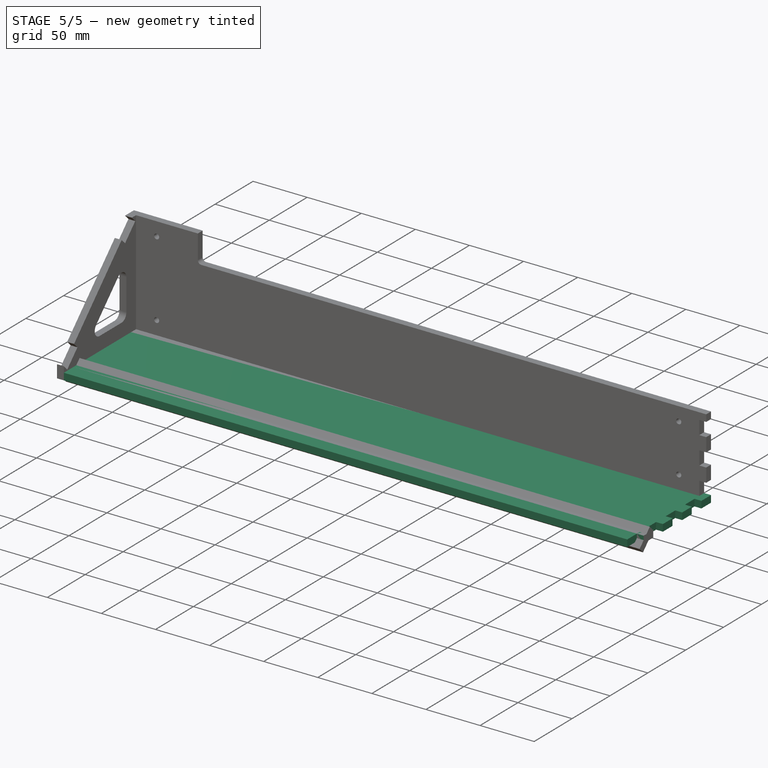
[diagram: stage 5 of 5 — iso view after this stage's code; geometry added in this stage tinted green]
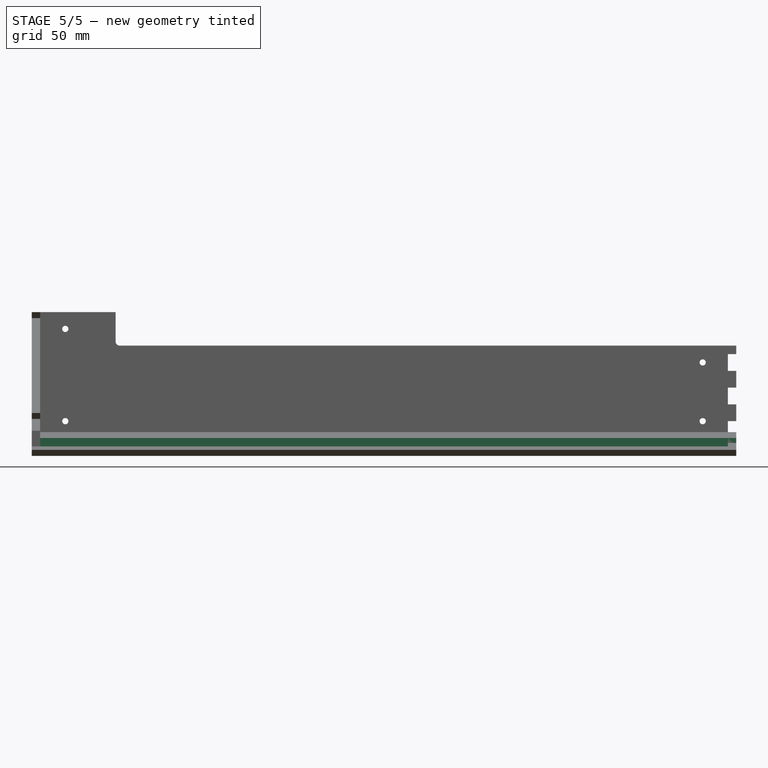
[diagram: stage 5 of 5 — front view after this stage's code; geometry added in this stage tinted green]
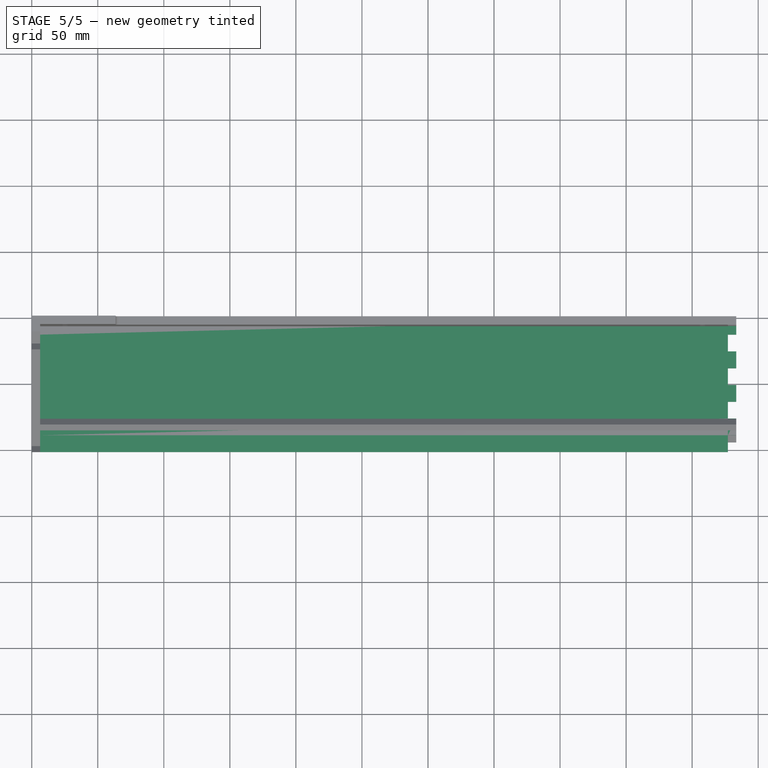
[diagram: stage 5 of 5 — top view after this stage's code; geometry added in this stage tinted green]
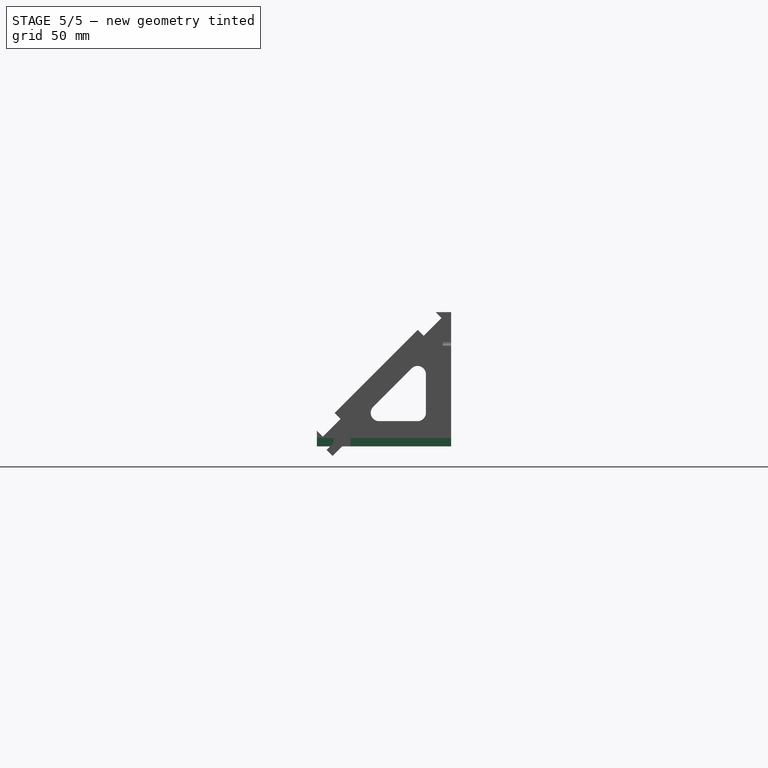
[diagram: stage 5 of 5 — right view after this stage's code; geometry added in this stage tinted green]
FEATURE [PartDesign::Body] Body003  label="back"
  AllowCompound = false
  Group = -> [Sketch006,Pad006,Sketch007,Pocket002,LinearPattern002,Sketch008,Sketch009,Pocket003,LinearPattern003]
  Origin = -> Origin009
  Tip = -> LinearPattern003
FEATURE [Sketcher::SketchObject] Sketch
  ArcFitTolerance = 1e-06
  AttachmentSupport = -> [XY_Plane002]
  FullyConstrained = true
  MakeInternals = false
  MapMode = 5
  sketch-geometry (4):
    g0: LineSegment StartX=0 StartY=0 StartZ=0 EndX=0 EndY=-101.6 EndZ=0
    g1: LineSegment StartX=0 StartY=-101.6 StartZ=0 EndX=533.4 EndY=-101.6 EndZ=0
    g2: LineSegment StartX=533.4 StartY=-101.6 StartZ=0 EndX=533.4 EndY=0 EndZ=0
    g3: LineSegment StartX=533.4 StartY=0 StartZ=0 EndX=0 EndY=0 EndZ=0
  constraints (11):
    c: Coincident(g0,g1)
    c: Coincident(g1,g2)
    c: Coincident(g2,g3)
    c: Coincident(g3,g0)
    c: Vertical(g0)
    c: Vertical(g2)
    c: Horizontal(g1)
    c: Horizontal(g3)
    c: Coincident(g0,g-1)
    c: DistanceY(g2,g2) = 101.6
    c: DistanceX(g1,g1) = 533.4
FEATURE [PartDesign::Pad] Pad
  Direction = (0,0,1)
  Length = 6.35
  Length2 = 10
  Profile = -> Sketch
  ReferenceAxis = -> Sketch [N_Axis]
  Refine = true
  Suppressed = false
  Type = 0
FEATURE [Sketcher::SketchObject] Sketch010
  ArcFitTolerance = 1e-06
  AttachmentSupport = -> [XY_Plane002]
  FullyConstrained = true
  MakeInternals = false
  MapMode = 5
  sketch-geometry (8):
    g0: LineSegment StartX=0 StartY=-12.7 StartZ=0 EndX=0 EndY=-25.4 EndZ=0
    g1: LineSegment StartX=0 StartY=-25.4 StartZ=0 EndX=6.35 EndY=-25.4 EndZ=0
    g2: LineSegment StartX=6.35 StartY=-25.4 StartZ=0 EndX=6.35 EndY=-12.7 EndZ=0
    g3: LineSegment StartX=6.35 StartY=-12.7 StartZ=0 EndX=0 EndY=-12.7 EndZ=0
    g4: LineSegment StartX=527.05 StartY=-12.7 StartZ=0 EndX=527.05 EndY=-25.4 EndZ=0
    g5: LineSegment StartX=527.05 StartY=-25.4 StartZ=0 EndX=533.4 EndY=-25.4 EndZ=0
    g6: LineSegment StartX=533.4 StartY=-25.4 StartZ=0 EndX=533.4 EndY=-12.7 EndZ=0
    g7: LineSegment StartX=533.4 StartY=-12.7 StartZ=0 EndX=527.05 EndY=-12.7 EndZ=0
  constraints (24):
    c: Coincident(g0,g1)
    c: Coincident(g1,g2)
    c: Coincident(g2,g3)
    c: Coincident(g3,g0)
    c: Vertical(g0)
    c: Vertical(g2)
    c: Horizontal(g1)
    c: Horizontal(g3)
    c: DistanceY(g0,g0) = 12.7
    c: DistanceX(g3,g3) = 6.35
    c: PointOnObject(g0,g-2)
    c: DistanceY(g0,g-1) = 12.7
    c: Coincident(g4,g5)
    c: Coincident(g5,g6)
    c: Coincident(g6,g7)
    c: Coincident(g7,g4)
    c: Vertical(g4)
    c: Vertical(g6)
    c: Horizontal(g5)
    c: Horizontal(g7)
    c: Equal(g5,g1)
    c: Equal(g4,g0)
    c: Horizontal(g2,g6)
    c: DistanceX(g-1,g6) = 533.4
FEATURE [PartDesign::Pocket] Pocket004
  BaseFeature = -> Pad
  Direction = (0,0,-1)
  Length = 5
  Length2 = 5
  Midplane = true
  Profile = -> Sketch010
  ReferenceAxis = -> Sketch010 [N_Axis]
  Refine = true
  Suppressed = false
  Type = 1
FEATURE [PartDesign::LinearPattern] LinearPattern005
  BaseFeature = -> Pocket004
  Direction = -> Y_Axis002
  Length = 127
  Mode = 1
  Occurrences = 6
  Offset = 25.4
  Originals = -> [Pocket004]
  Refine = true
  Reversed = true
  Suppressed = false
  TransformMode = 0
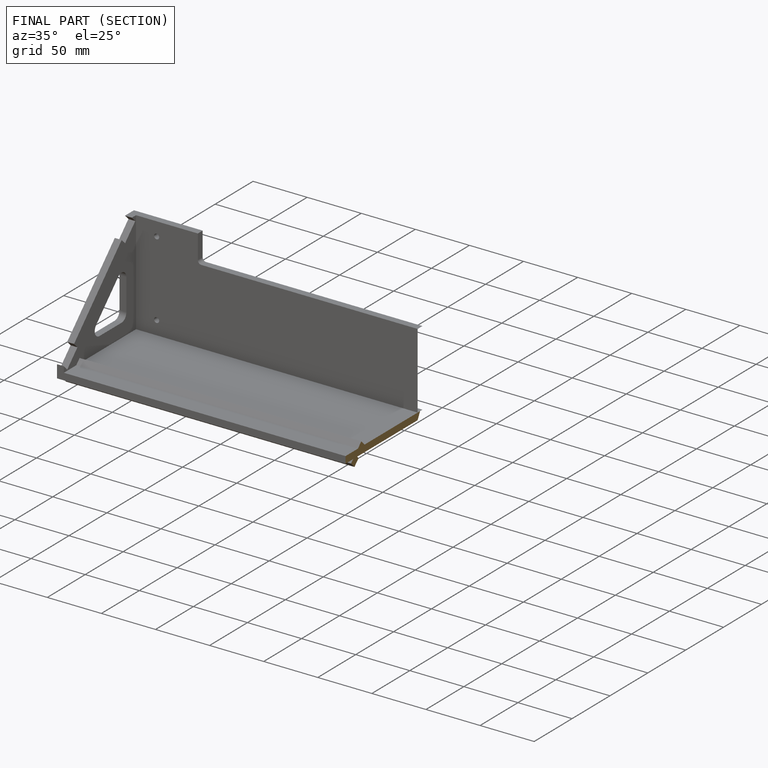
[diagram: finished part — half-section view (interior)]
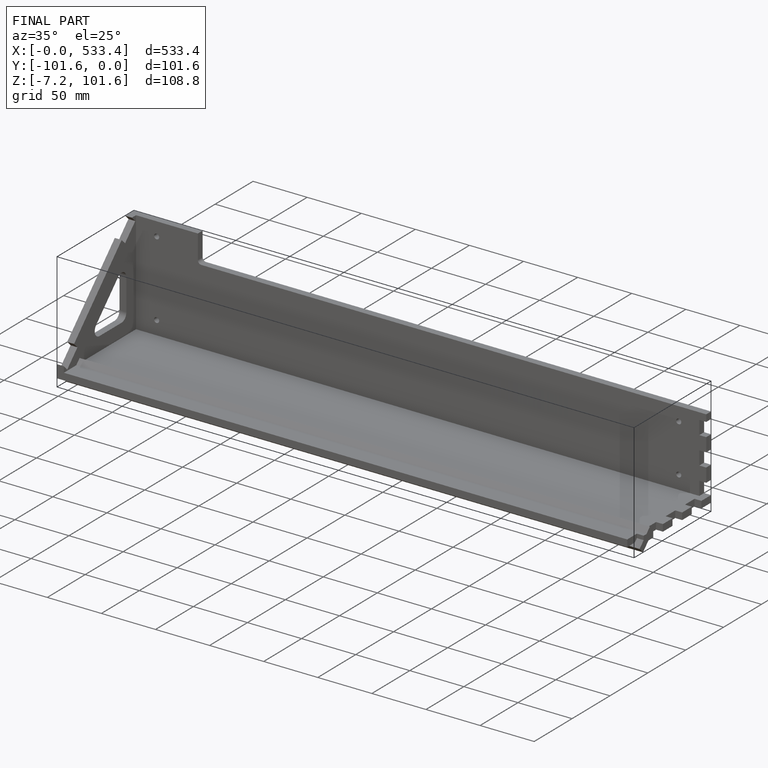
[diagram: finished part — iso view with bounding-box wireframe]
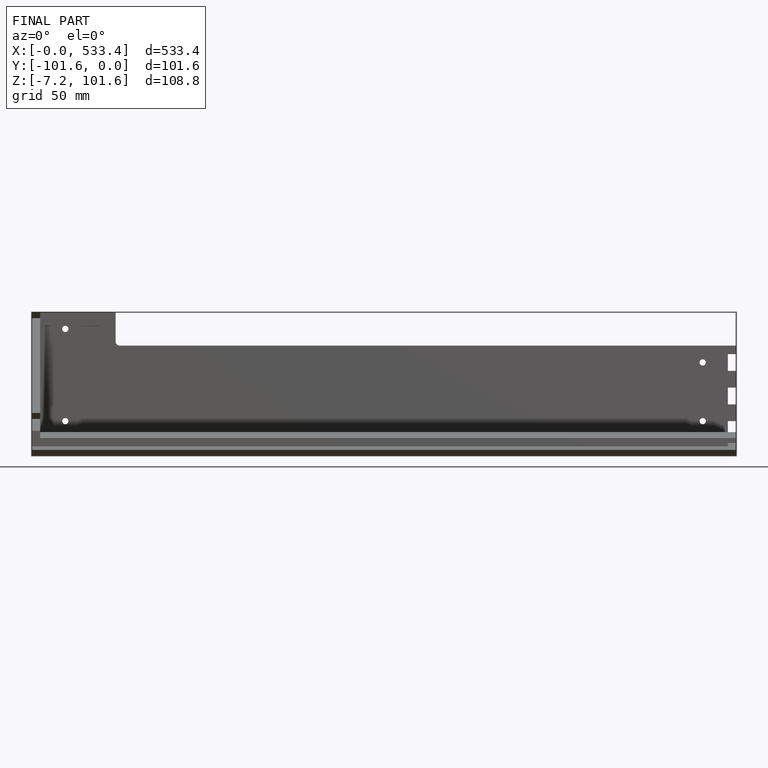
[diagram: finished part — front view with bounding-box wireframe]
